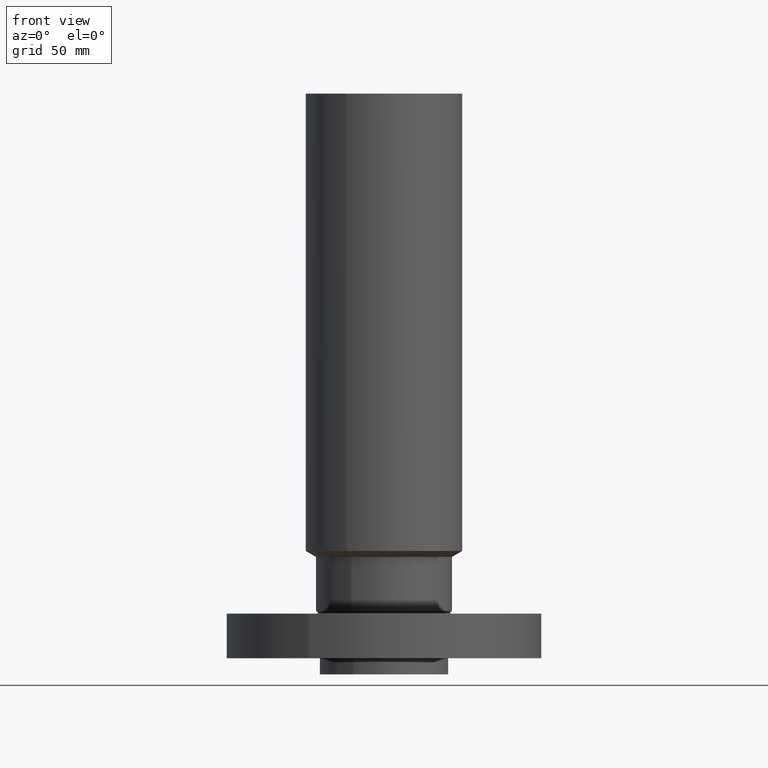
[diagram: clean part render]
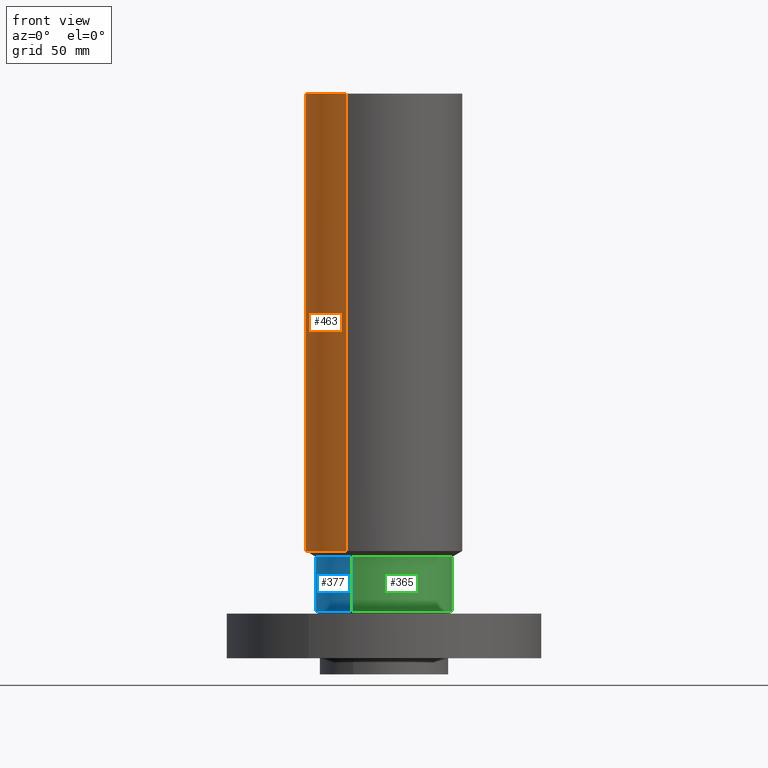
[diagram: same view with three faces highlighted in distinct colors, each labeled with its STEP entity id]
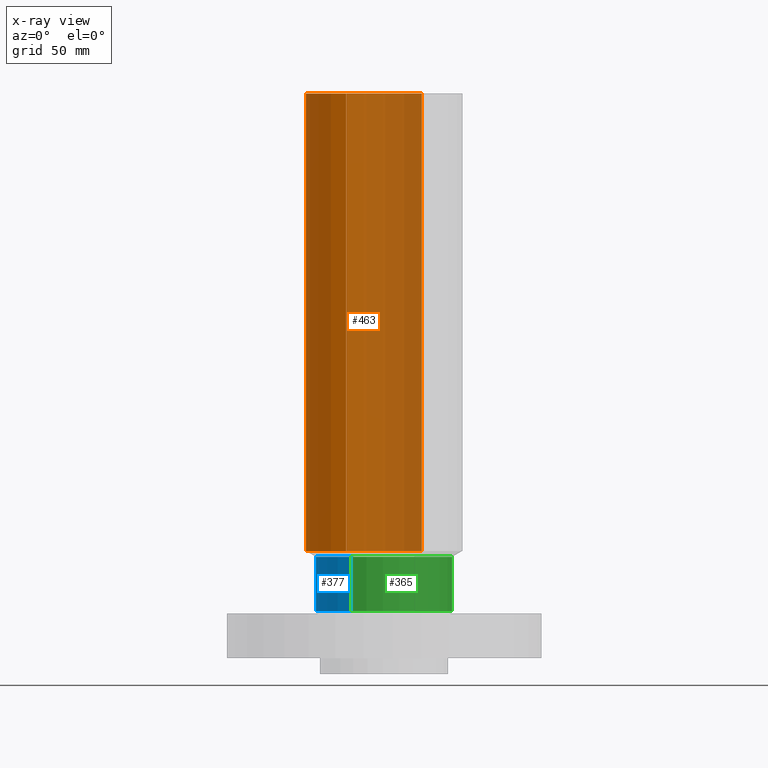
[diagram: x-ray of the same camera — body ghosted, the three highlighted faces saturated]
A machine part, front view with three faces highlighted in distinct colors.
The next image is the same camera in x-ray (body ghosted, the three faces saturated) — at least one of them is partly hidden behind the body in this view.
Their STEP definitions:

[orange] entity #463 — the highlighted cylindrical surface (partial cylindrical patch) has radius 30.988 mm, axis along (0, 0, -1).
#411=AXIS2_PLACEMENT_3D('Circle Axis2P3D',#409,#410,$) ;
#424=AXIS2_PLACEMENT_3D('Cylinder Axis2P3D',#421,#422,#423) ;
#454=AXIS2_PLACEMENT_3D('Circle Axis2P3D',#452,#453,$) ;
#387=CARTESIAN_POINT('Vertex',(0.584899157099,1.07065072551,1.66237604308)) ;
#394=CARTESIAN_POINT('Vertex',(-0.584899157099,-1.07065072551,1.66237604308)) ;
#409=CARTESIAN_POINT('Axis2P3D Location',(0.,0.,1.66237604308)) ;
#421=CARTESIAN_POINT('Axis2P3D Location',(0.,0.,4.25000000002)) ;
#426=CARTESIAN_POINT('Line Origine',(0.584899157099,1.07065072551,5.20618802156)) ;
#430=CARTESIAN_POINT('Vertex',(0.584899157099,1.07065072551,8.75000000004)) ;
#437=CARTESIAN_POINT('Vertex',(-0.584899157099,-1.07065072551,8.75000000004)) ;
#440=CARTESIAN_POINT('Line Origine',(-0.584899157099,-1.07065072551,5.20618802156)) ;
#452=CARTESIAN_POINT('Axis2P3D Location',(0.,0.,8.75000000003)) ;
#410=DIRECTION('Axis2P3D Direction',(-0.,0.,0.0393700787402)) ;
#422=DIRECTION('Axis2P3D Direction',(0.,0.,-0.0393700787402)) ;
#423=DIRECTION('Axis2P3D XDirection',(-0.0188750212049,-0.0345504945626,0.)) ;
#427=DIRECTION('Vector Direction',(0.,0.,-0.0393700787402)) ;
#441=DIRECTION('Vector Direction',(0.,0.,-0.0393700787402)) ;
#453=DIRECTION('Axis2P3D Direction',(0.,0.,-0.0393700787402)) ;
#428=VECTOR('Line Direction',#427,0.0393700787402) ;
#442=VECTOR('Line Direction',#441,0.0393700787402) ;
#458=ORIENTED_EDGE('',*,*,#413,.F.) ;
#459=ORIENTED_EDGE('',*,*,#444,.T.) ;
#460=ORIENTED_EDGE('',*,*,#456,.T.) ;
#461=ORIENTED_EDGE('',*,*,#432,.F.) ;
#463=ADVANCED_FACE('PartBody',(#462),#425,.T.) ;
#412=CIRCLE('generated circle',#411,1.22) ;
#455=CIRCLE('generated circle',#454,1.22) ;
#425=CYLINDRICAL_SURFACE('generated cylinder',#424,1.22) ;
#413=EDGE_CURVE('',#395,#388,#412,.F.) ;
#432=EDGE_CURVE('',#388,#431,#429,.F.) ;
#444=EDGE_CURVE('',#395,#438,#443,.F.) ;
#456=EDGE_CURVE('',#438,#431,#455,.T.) ;
#457=EDGE_LOOP('',(#458,#459,#460,#461)) ;
#462=FACE_OUTER_BOUND('',#457,.T.) ;
#429=LINE('Line',#426,#428) ;
#443=LINE('Line',#440,#442) ;
#388=VERTEX_POINT('',#387) ;
#395=VERTEX_POINT('',#394) ;
#431=VERTEX_POINT('',#430) ;
#438=VERTEX_POINT('',#437) ;

[blue] entity #377 — the highlighted cylindrical surface (partial cylindrical patch) has radius 26.924 mm, axis along (0, 0, -1).
#325=AXIS2_PLACEMENT_3D('Circle Axis2P3D',#323,#324,$) ;
#338=AXIS2_PLACEMENT_3D('Cylinder Axis2P3D',#335,#336,#337) ;
#368=AXIS2_PLACEMENT_3D('Circle Axis2P3D',#366,#367,$) ;
#301=CARTESIAN_POINT('Vertex',(0.508191070922,0.930237515608,0.730980762116)) ;
#308=CARTESIAN_POINT('Vertex',(-0.508191070922,-0.930237515608,0.730980762116)) ;
#323=CARTESIAN_POINT('Axis2P3D Location',(0.,0.,0.730980762116)) ;
#335=CARTESIAN_POINT('Axis2P3D Location',(0.,0.,4.25000000002)) ;
#340=CARTESIAN_POINT('Line Origine',(0.508191070922,0.930237515608,1.15049038106)) ;
#344=CARTESIAN_POINT('Vertex',(0.508191070922,0.930237515608,1.57000000001)) ;
#351=CARTESIAN_POINT('Vertex',(-0.508191070922,-0.930237515608,1.57000000001)) ;
#354=CARTESIAN_POINT('Line Origine',(-0.508191070922,-0.930237515608,1.15049038106)) ;
#366=CARTESIAN_POINT('Axis2P3D Location',(0.,0.,1.57000000001)) ;
#324=DIRECTION('Axis2P3D Direction',(-0.,0.,0.0393700787402)) ;
#336=DIRECTION('Axis2P3D Direction',(0.,0.,-0.0393700787402)) ;
#337=DIRECTION('Axis2P3D XDirection',(-0.0188750212049,-0.0345504945626,0.)) ;
#341=DIRECTION('Vector Direction',(0.,0.,-0.0393700787402)) ;
#355=DIRECTION('Vector Direction',(0.,0.,-0.0393700787402)) ;
#367=DIRECTION('Axis2P3D Direction',(0.,0.,-0.0393700787402)) ;
#342=VECTOR('Line Direction',#341,0.0393700787402) ;
#356=VECTOR('Line Direction',#355,0.0393700787402) ;
#372=ORIENTED_EDGE('',*,*,#327,.F.) ;
#373=ORIENTED_EDGE('',*,*,#358,.T.) ;
#374=ORIENTED_EDGE('',*,*,#370,.T.) ;
#375=ORIENTED_EDGE('',*,*,#346,.F.) ;
#377=ADVANCED_FACE('PartBody',(#376),#339,.T.) ;
#326=CIRCLE('generated circle',#325,1.06) ;
#369=CIRCLE('generated circle',#368,1.06) ;
#339=CYLINDRICAL_SURFACE('generated cylinder',#338,1.06) ;
#327=EDGE_CURVE('',#309,#302,#326,.F.) ;
#346=EDGE_CURVE('',#302,#345,#343,.F.) ;
#358=EDGE_CURVE('',#309,#352,#357,.F.) ;
#370=EDGE_CURVE('',#352,#345,#369,.T.) ;
#371=EDGE_LOOP('',(#372,#373,#374,#375)) ;
#376=FACE_OUTER_BOUND('',#371,.T.) ;
#343=LINE('Line',#340,#342) ;
#357=LINE('Line',#354,#356) ;
#302=VERTEX_POINT('',#301) ;
#309=VERTEX_POINT('',#308) ;
#345=VERTEX_POINT('',#344) ;
#352=VERTEX_POINT('',#351) ;

[green] entity #365 — the highlighted cylindrical surface (partial cylindrical patch) has radius 26.924 mm, axis along (0, 0, -1).
#306=AXIS2_PLACEMENT_3D('Circle Axis2P3D',#304,#305,$) ;
#338=AXIS2_PLACEMENT_3D('Cylinder Axis2P3D',#335,#336,#337) ;
#349=AXIS2_PLACEMENT_3D('Circle Axis2P3D',#347,#348,$) ;
#301=CARTESIAN_POINT('Vertex',(0.508191070922,0.930237515608,0.730980762116)) ;
#304=CARTESIAN_POINT('Axis2P3D Location',(0.,0.,0.730980762116)) ;
#308=CARTESIAN_POINT('Vertex',(-0.508191070922,-0.930237515608,0.730980762116)) ;
#335=CARTESIAN_POINT('Axis2P3D Location',(0.,0.,4.25000000002)) ;
#340=CARTESIAN_POINT('Line Origine',(0.508191070922,0.930237515608,1.15049038106)) ;
#344=CARTESIAN_POINT('Vertex',(0.508191070922,0.930237515608,1.57000000001)) ;
#347=CARTESIAN_POINT('Axis2P3D Location',(0.,0.,1.57000000001)) ;
#351=CARTESIAN_POINT('Vertex',(-0.508191070922,-0.930237515608,1.57000000001)) ;
#354=CARTESIAN_POINT('Line Origine',(-0.508191070922,-0.930237515608,1.15049038106)) ;
#305=DIRECTION('Axis2P3D Direction',(-0.,0.,0.0393700787402)) ;
#336=DIRECTION('Axis2P3D Direction',(0.,0.,-0.0393700787402)) ;
#337=DIRECTION('Axis2P3D XDirection',(-0.0188750212049,-0.0345504945626,0.)) ;
#341=DIRECTION('Vector Direction',(0.,0.,-0.0393700787402)) ;
#348=DIRECTION('Axis2P3D Direction',(0.,0.,-0.0393700787402)) ;
#355=DIRECTION('Vector Direction',(0.,0.,-0.0393700787402)) ;
#342=VECTOR('Line Direction',#341,0.0393700787402) ;
#356=VECTOR('Line Direction',#355,0.0393700787402) ;
#360=ORIENTED_EDGE('',*,*,#310,.F.) ;
#361=ORIENTED_EDGE('',*,*,#346,.T.) ;
#362=ORIENTED_EDGE('',*,*,#353,.T.) ;
#363=ORIENTED_EDGE('',*,*,#358,.F.) ;
#365=ADVANCED_FACE('PartBody',(#364),#339,.T.) ;
#307=CIRCLE('generated circle',#306,1.06) ;
#350=CIRCLE('generated circle',#349,1.06) ;
#339=CYLINDRICAL_SURFACE('generated cylinder',#338,1.06) ;
#310=EDGE_CURVE('',#302,#309,#307,.F.) ;
#346=EDGE_CURVE('',#302,#345,#343,.F.) ;
#353=EDGE_CURVE('',#345,#352,#350,.T.) ;
#358=EDGE_CURVE('',#309,#352,#357,.F.) ;
#359=EDGE_LOOP('',(#360,#361,#362,#363)) ;
#364=FACE_OUTER_BOUND('',#359,.T.) ;
#343=LINE('Line',#340,#342) ;
#357=LINE('Line',#354,#356) ;
#302=VERTEX_POINT('',#301) ;
#309=VERTEX_POINT('',#308) ;
#345=VERTEX_POINT('',#344) ;
#352=VERTEX_POINT('',#351) ;